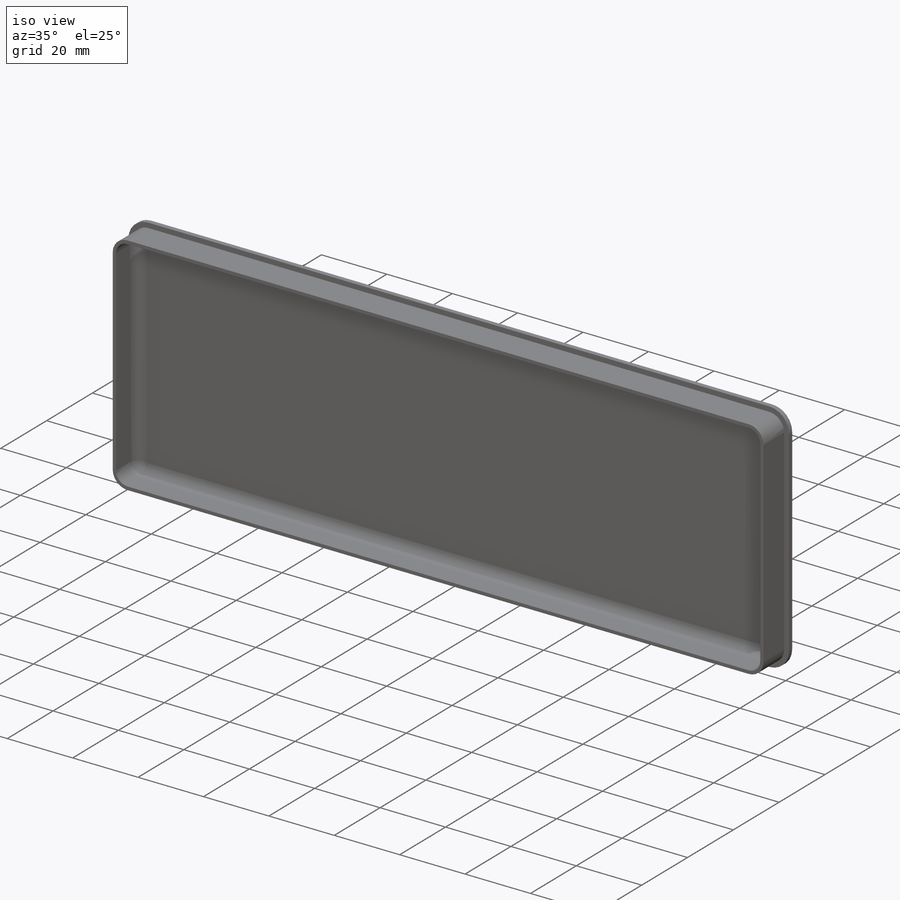
[diagram: iso view]
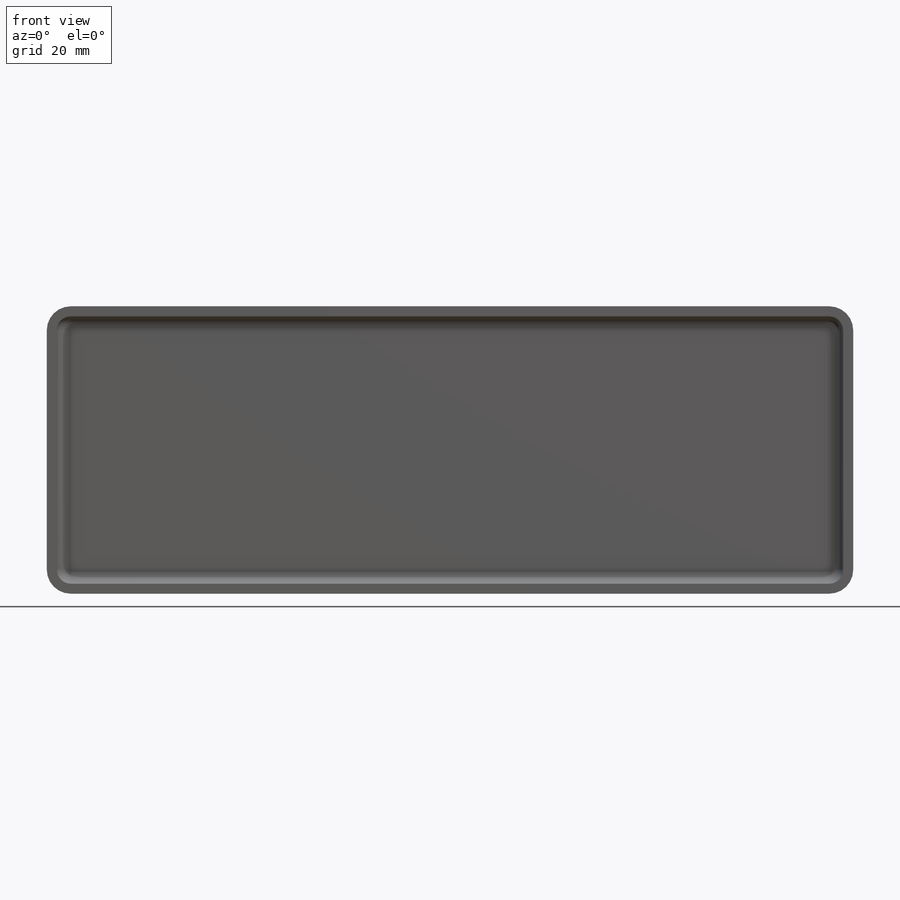
[diagram: front view]
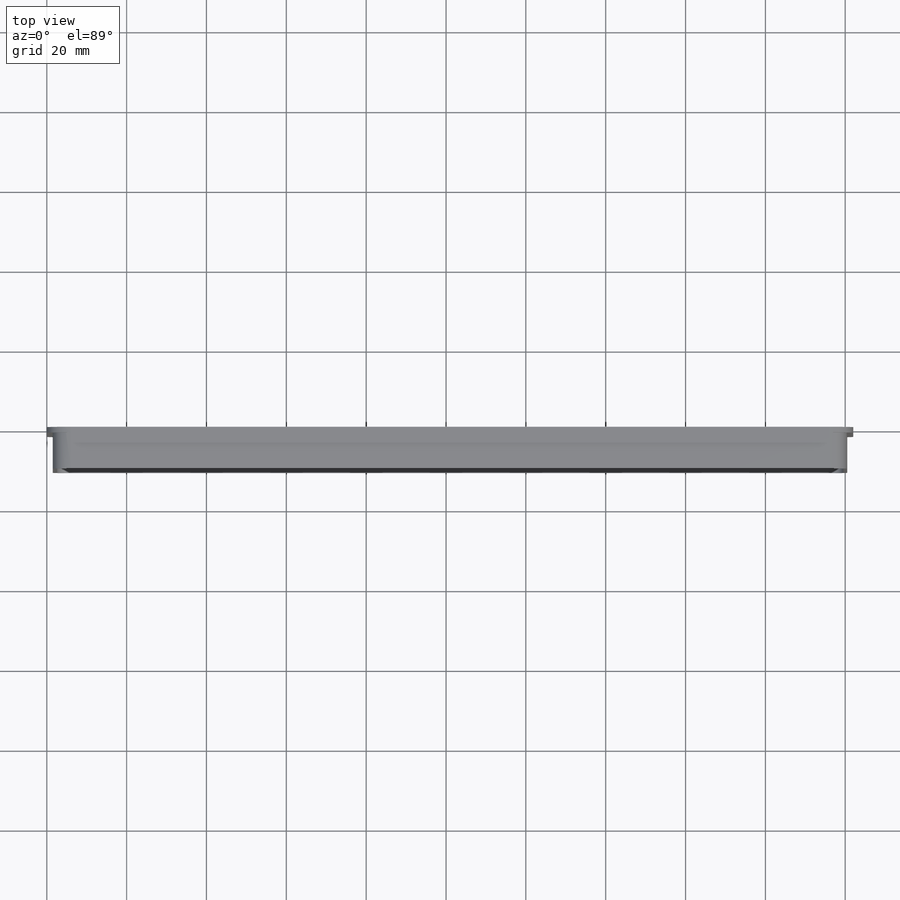
[diagram: top view]
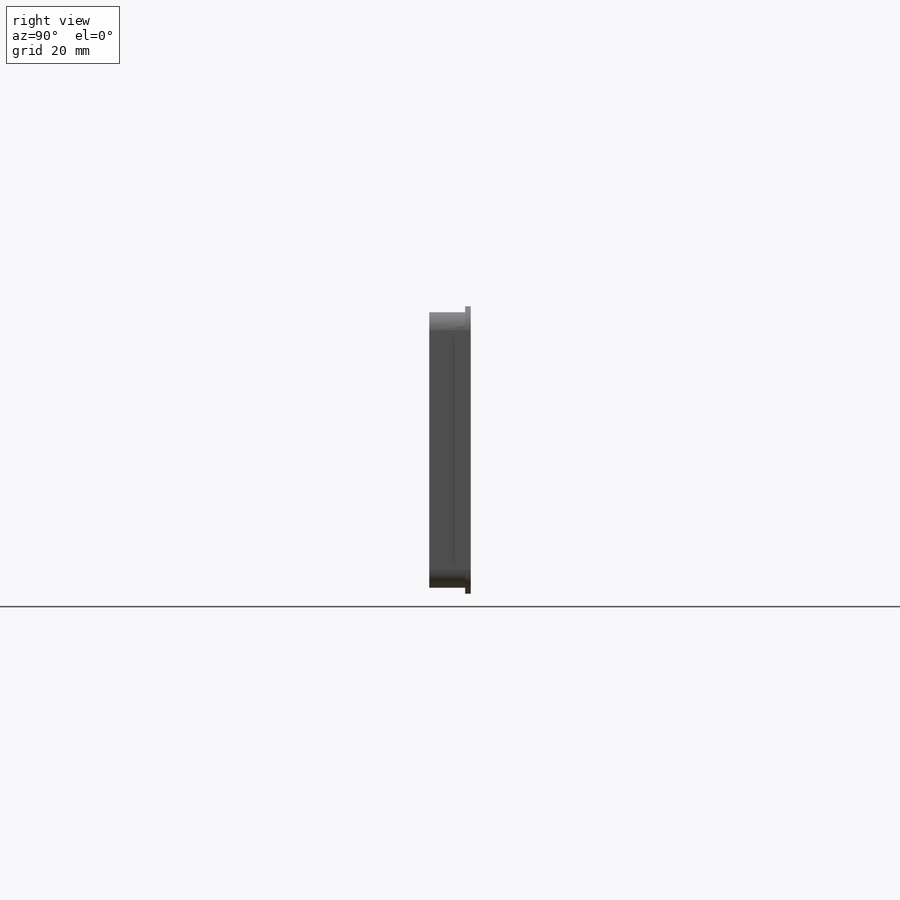
[diagram: right view]
SOLIDWORKS PART (.sldprt)
format: sldprt  version: not decoded by parser v0  size: 241,152 bytes
history: native  units: mm
features: fillet x4, sketch x2, extrude x2, material x1 (+12 scaffold rows collapsed)
feature tree (21):
  scaffold x12  (default folders/planes/origin — collapsed)
  material  "Material <not specified>"
  sketch  "Sketch1"  dims[D1=202.0mm D2=72.0mm]
  extrude  "Boss-Extrude1"  Depth=1.4mm
  sketch  "Sketch2"  dims[D1=1.5mm D2=1.0mm D3=1.5mm D4=1.0mm D5=1.5mm D6=1.0mm D7=1.5mm D8=1.0mm]
  extrude  "Boss-Extrude2"  Depth=9mm
  fillet  "Fillet1"  Radius=3.5mm
  fillet  "Fillet2"  Radius=4.5mm
  fillet  "Fillet3"  Radius=6mm
  fillet  "Fillet4"  Radius=3mm
decode coverage: 8 of 8 modeling features carry decoded parameters
note: suppression state not decoded; provenance and decode notes live in map.json
